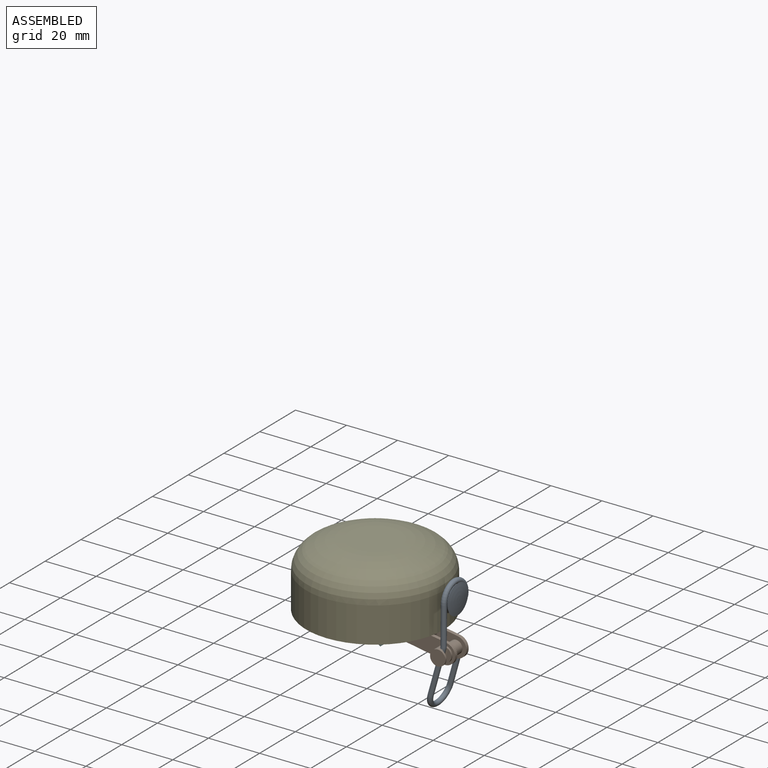
[diagram: assembled view]
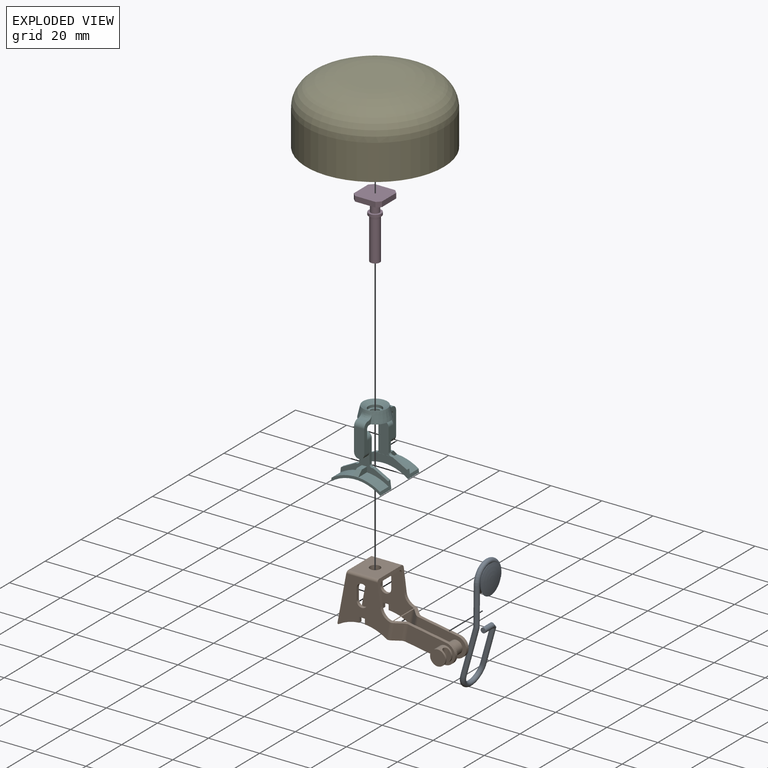
[diagram: exploded view]
GUIDED TOUR — MATED ASSEMBLY WITH SUBASSEMBLIES (Onshape document 56e26722e4b0724211d9a1d1, AutoMate assembly 56e26722e4b0724211d9a1d1_04165e789e1404fa7c723717_1f0495e86e8e58e358d8e318_default)

This assembly has 7 component occurrences arranged in 6 top-level units: 5 individual components plus 1 subassembly (S0). The tour has two levels: first the top level, where each subassembly is treated as one rigid unit; then each subassembly is toured internally in its own section (nesting deeper than one subassembly level is flattened into its subassembly's section).

Components are labeled P0..P6 across the whole record; subassembly units are labeled S0..S0. A mate is a constraint between two units; its type names the relative motion it leaves free:
  CYLINDRICAL — leaves both rotation about and translation along the listed axis free,
  FASTENED — locks the two components together rigidly (no relative motion).
Axis/direction vectors are unit vectors and 'through' points are millimeter coordinates, both in the assembly's world frame.

TOP-LEVEL MATES (between units; each subassembly's internal mates are listed in its own section)
  1. FASTENED "Fastened 2": P2 <-> P3, direction (0.000, 0.000, 1.000) through (3.23, 0.00, 3.32) mm
  2. CYLINDRICAL "Cylindrical 2": P3 <-> P1, axis (0.000, 0.000, -1.000) through (3.23, 0.00, -2.28) mm
  3. CYLINDRICAL "Cylindrical 3": P4 <-> P2, axis (0.000, 0.000, 1.000) through (3.23, 0.00, 3.04) mm
  4. CYLINDRICAL "Cylindrical 1": S0 <-> P1, axis (0.000, -1.000, 0.000) through (33.23, -0.80, -22.26) mm
  5. FASTENED "Fastened 1": P5 <-> P1, direction (0.000, 0.000, -1.000) through (3.23, 0.00, -1.26) mm

TOP-LEVEL ASSEMBLY ORDER
  1. P1 — the base component [order heuristic]
  2. S0 [order heuristic]
  3. P3 [order heuristic]
  4. P5 [order heuristic]
  5. P2 [order heuristic]
  6. P4 [order heuristic]
Order-tag legend:
  [order heuristic] — this assembly is geometrically interlocked (no collision-free removal order exists), so components are listed in mate-graph order; insertion feasibility is not verified.

Of the 7 component occurrences, 2 carry the full construction recipe — the FeatureScript program that regenerates the part's solid from scratch; the rest are supplied as boundary geometry only. Each toured unit is shown spotlighted twice — assembled, then exploded with a leader line back to its socket (green = recipe-attached component, orange = geometry-only, blue = subassembly unit; the rest desaturated gray).
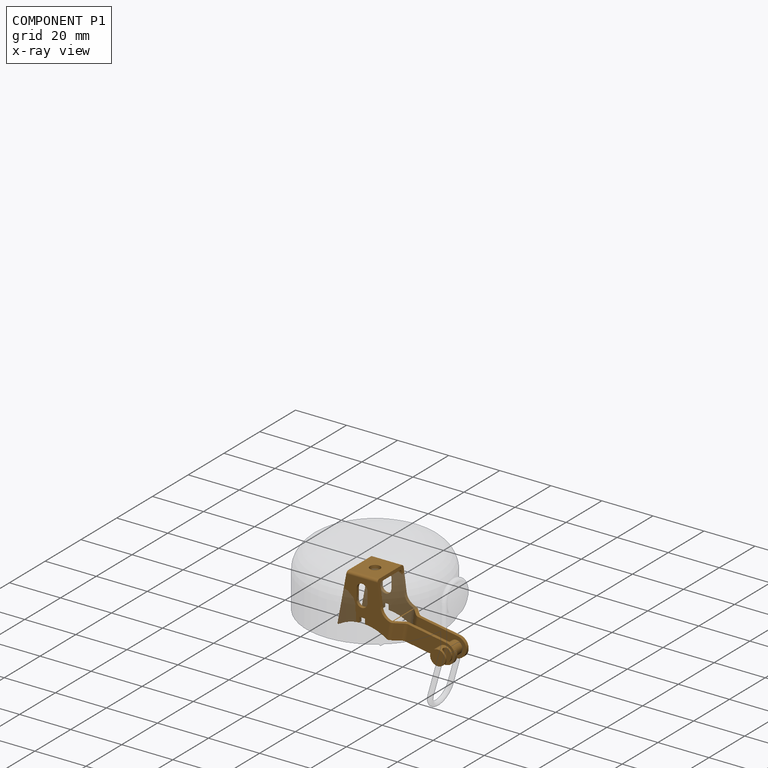
[diagram: component P1 — x-ray view]
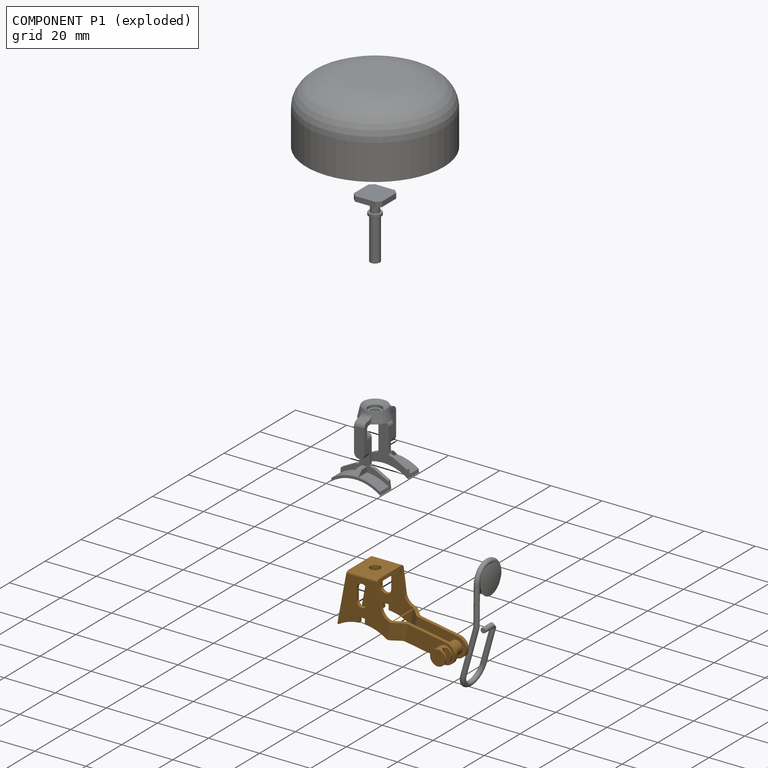
[diagram: component P1 — exploded]
COMPONENT P1 — geometry summary (no construction recipe available for this part):
  bounding box: 43.6 x 25.0 x 15.1 mm
  B-rep topology: 1 solid, 73 faces, 422 edges
  volume: 1398 mm^3 (8% of its bounding box)
Held by: CYLINDRICAL mate "Cylindrical 2" to P3; CYLINDRICAL mate "Cylindrical 1" to P0; FASTENED mate "Fastened 1" to P5.
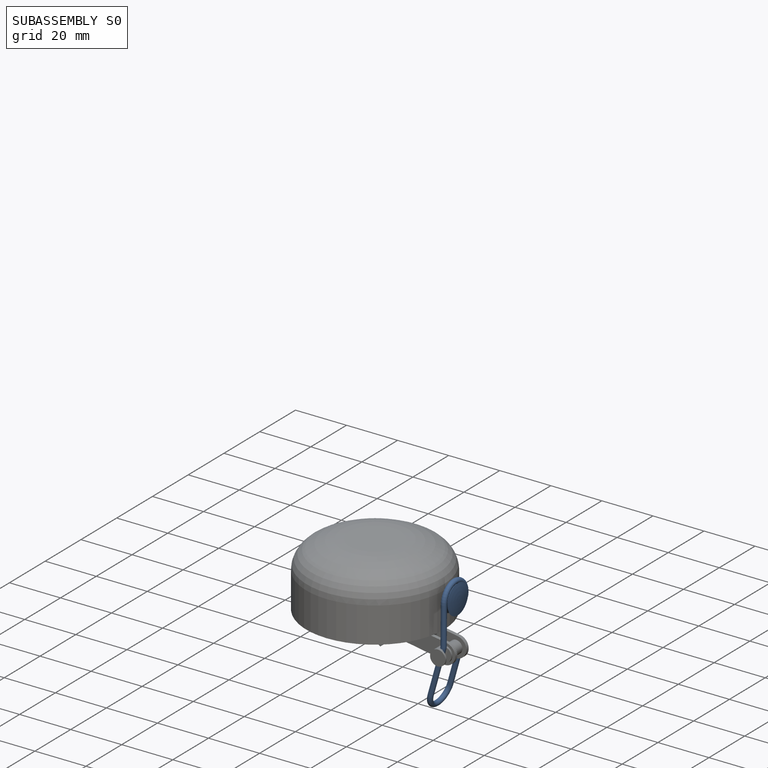
[diagram: subassembly S0 — assembled]
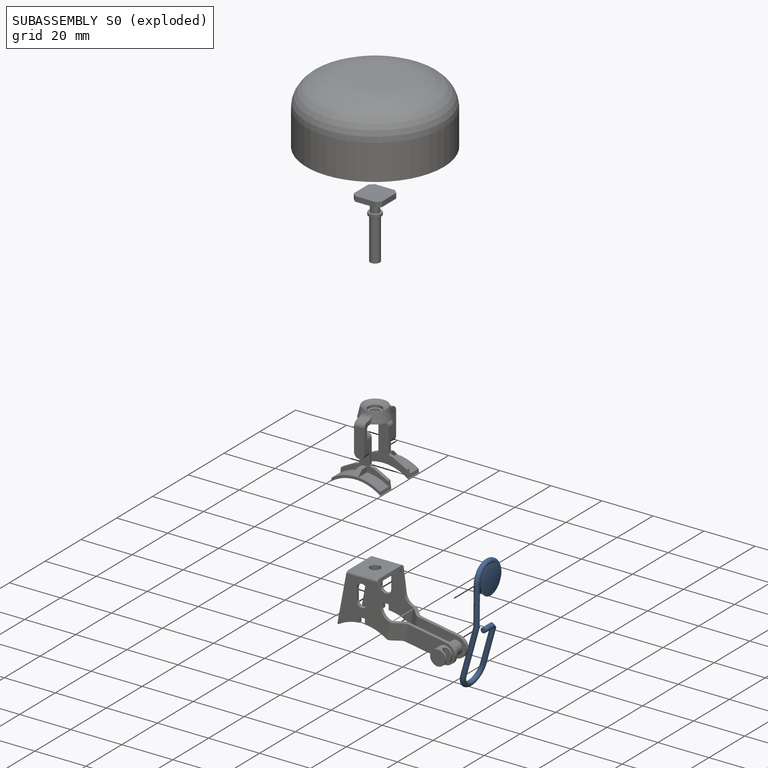
[diagram: subassembly S0 — exploded]
SUBASSEMBLY S0 — 2 components (P0, P6), of which 0 recipe-attached; toured below.
Held by: CYLINDRICAL mate "Cylindrical 1" to P1.
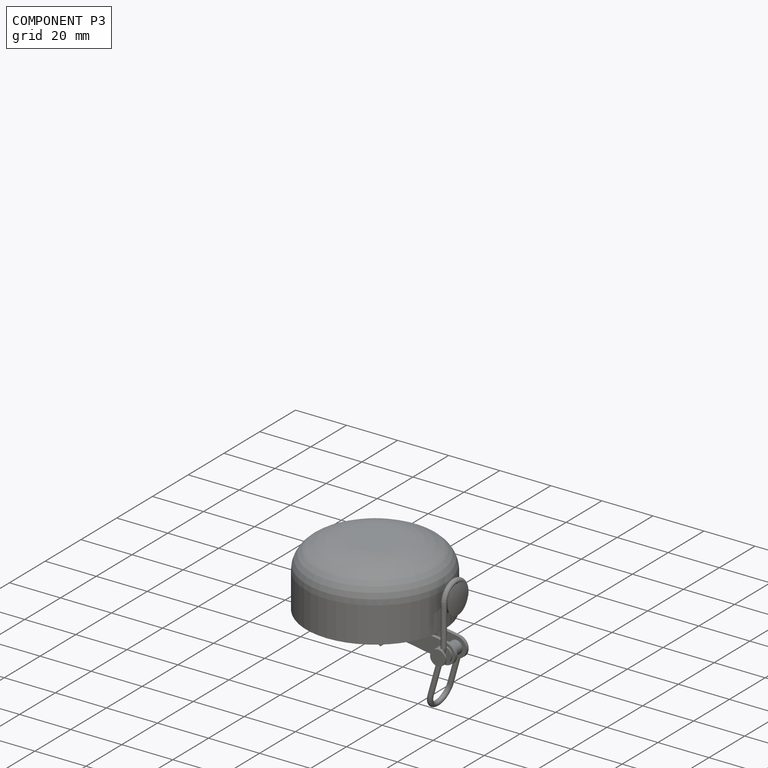
[diagram: component P3 — assembled]
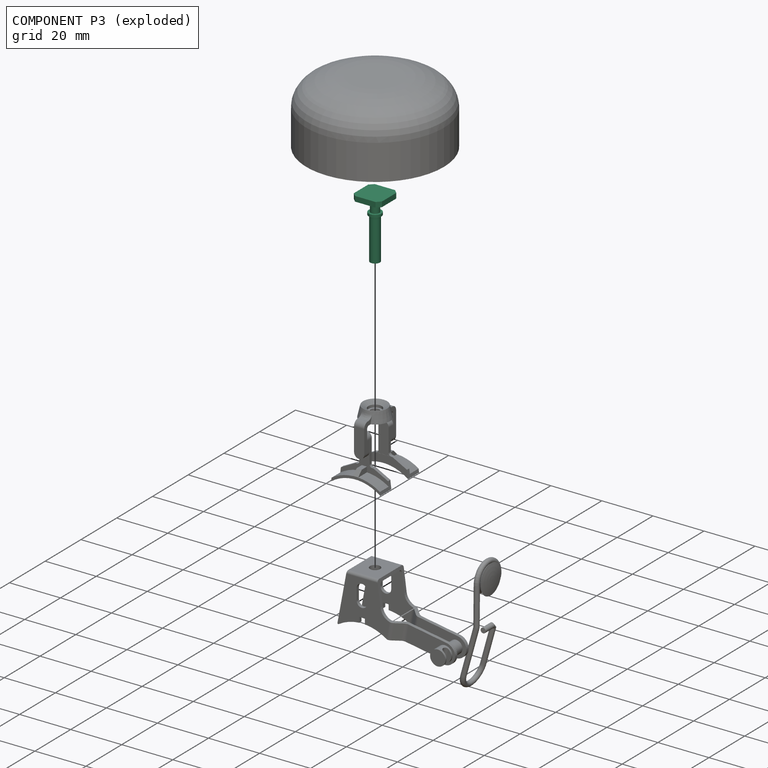
[diagram: component P3 — exploded]
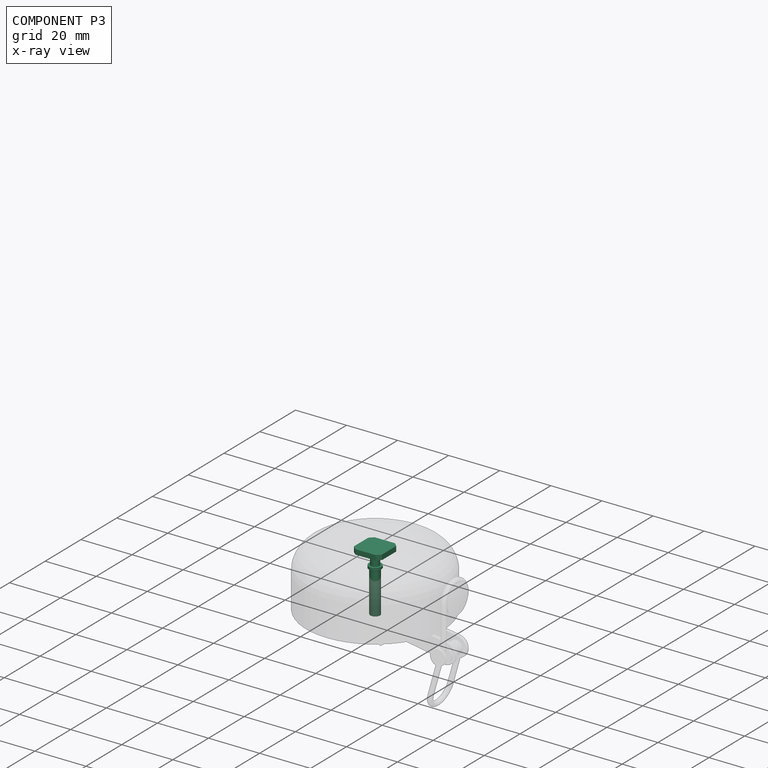
[diagram: component P3 — x-ray view]
COMPONENT P3 — recipe-attached (CADFS 00107358, mesh-verified: the recipe's output STEP matches this component's geometry to below the mesh-comparison resolution (tessellation chordal tolerance ~0.043 mm)).
Held by: FASTENED mate "Fastened 2" to P2; CYLINDRICAL mate "Cylindrical 2" to P1.
Construction recipe (FeatureScript — the CAD program that rebuilds this solid; sketch coordinates are in the units given by the * unit suffixes, e.g. mm):

FeatureScript 1511;
import(path : "onshape/std/geometry.fs", version : "1511.0");
import(path : "onshape/std/common.fs", version : "1511.0");
const mm = millimeter;
const VERTEX = EntityType.VERTEX;
const EDGE = EntityType.EDGE;
const FACE = EntityType.FACE;
const BODY = EntityType.BODY;
function v(x, y){return vector(x, y);}
function OD(order){return orderDisambiguation(order);}
function OSD(set){return originalSetDisambiguation(set);}
function TD(topology){return topologyDisambiguation(topology);}
function TDD(query){return trueDependencyDisambiguation(query);}
function sQuery(a, b, c) {return sketchEntityQuery(a, b, c);}

annotation { "Feature Type Name" : "Feature", "Feature Type Description" : "" }
export const myFeature = defineFeature(function(context is Context, id is Id, definition is map)
    precondition{}
    {
        {
            var Q0;
            Q0=qCreatedBy(makeId("Right.planeOp"),FACE);
            var sketch = newSketch(context, id + "F0", { "sketchPlane" : qUnion([Q0])});
            skLineSegment(sketch, "E0", {"start": v(-3.4, 0) * mm, "end": v(-1.68, 1) * mm});
            skLineSegment(sketch, "E1", {"start": v(-1.68, 1) * mm, "end": v(-1.68, 4.6) * mm});
            skLineSegment(sketch, "E2", {"start": v(-1.68, 4.6) * mm, "end": v(-2.5, 4.6) * mm});
            skLineSegment(sketch, "E3", {"start": v(-2.5, 4.6) * mm, "end": v(-2.5, 5.6) * mm});
            skLineSegment(sketch, "E4", {"start": v(-2.5, 5.6) * mm, "end": v(-2, 5.6) * mm});
            skLineSegment(sketch, "E5", {"start": v(-2, 5.6) * mm, "end": v(-1.9, 6.6) * mm});
            skLineSegment(sketch, "E6", {"start": v(-1.9, 6.6) * mm, "end": v(-1.9, 22.1) * mm});
            skLineSegment(sketch, "E7", {"start": v(-1.9, 22.1) * mm, "end": v(0, 22.1) * mm});
            skLineSegment(sketch, "E8", {"start": v(0, 22.1) * mm, "end": v(0, 0) * mm});
            skLineSegment(sketch, "E9", {"start": v(-3.4, 0) * mm, "end": v(0, 0) * mm});
            skSolve(sketch);
        }
        {
            var Q0;
            Q0=makeQuery(id+"F0.imprint","IMPRINT",FACE,{"disambiguationData":[TD([[makeQuery(id+"F0.imprint","IMPRINT",EDGE,{"derivedFrom":sQuery(id+"F0.wireOp",EDGE,"E0")}),-1.0]])]});
            var Q1;
            Q1=sQuery(id+"F0.wireOp",EDGE,"E8");
            revolve(context, id + "F1", {"entities" : qUnion([Q0]), "axis" : qUnion([Q1]), "revolveType" : RevolveType.FULL});
        }
        {
            var Q0;
            Q0=qCreatedBy(makeId("Top.planeOp"),FACE);
            var sketch = newSketch(context, id + "F2", { "sketchPlane" : qUnion([Q0])});
            skLineSegment(sketch, "E10", {"start": v(-5.5, -5.5) * mm, "end": v(5.5, -5.5) * mm});
            skLineSegment(sketch, "E11", {"start": v(5.5, -5.5) * mm, "end": v(5.5, 5.5) * mm});
            skLineSegment(sketch, "E12", {"start": v(5.5, 5.5) * mm, "end": v(-5.5, 5.5) * mm});
            skLineSegment(sketch, "E13", {"start": v(-5.5, 5.5) * mm, "end": v(-5.5, -5.5) * mm});
            skLineSegment(sketch, "E14", {"start": v(0, -5.5) * mm, "end": v(0, 5.5) * mm, "construction": true});
            skLineSegment(sketch, "E15", {"start": v(-5.5, 0) * mm, "end": v(5.5, 0) * mm, "construction": true});
            skSolve(sketch);
        }
        {
            var Q0;
            Q0=makeQuery(id+"F2.imprint","IMPRINT",FACE,{"disambiguationData":[TD([[makeQuery(id+"F2.imprint","IMPRINT",EDGE,{"derivedFrom":sQuery(id+"F2.wireOp",EDGE,"E10")}),1.0]])]});
            extrude(context, id + "F3", {"entities" : qUnion([Q0]), "operationType" : NewBodyOperationType.ADD, "oppositeDirection" : true, "depth" : 2 * mm});
        }
        {
            var Q0;
            Q0=makeQuery(id+"F3.opExtrude","SWEPT_EDGE",EDGE,{"disambiguationData":[OSD([sQuery(id+"F2.wireOp",EDGE,"E12"),sQuery(id+"F2.wireOp",EDGE,"E13")])]});
            var Q1;
            Q1=makeQuery(id+"F3.opExtrude","SWEPT_EDGE",EDGE,{"disambiguationData":[OSD([sQuery(id+"F2.wireOp",EDGE,"E11"),sQuery(id+"F2.wireOp",EDGE,"E12")])]});
            var Q2;
            Q2=makeQuery(id+"F3.opExtrude","SWEPT_EDGE",EDGE,{"disambiguationData":[OSD([sQuery(id+"F2.wireOp",EDGE,"E10"),sQuery(id+"F2.wireOp",EDGE,"E11")])]});
            var Q3;
            Q3=makeQuery(id+"F3.opExtrude","SWEPT_EDGE",EDGE,{"disambiguationData":[OSD([sQuery(id+"F2.wireOp",EDGE,"E10"),sQuery(id+"F2.wireOp",EDGE,"E13")])]});
            chamfer(context, id + "F4", {"entities" : qUnion([Q0, Q1, Q2, Q3]), "width" : 1.5 * mm, "tangentPropagation" : true});
        }
    });
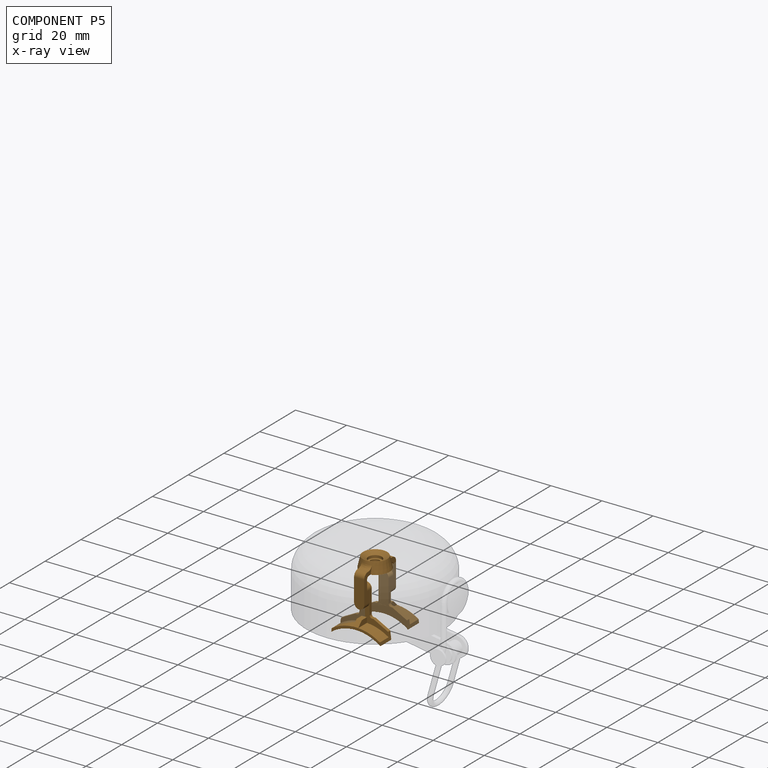
[diagram: component P5 — x-ray view]
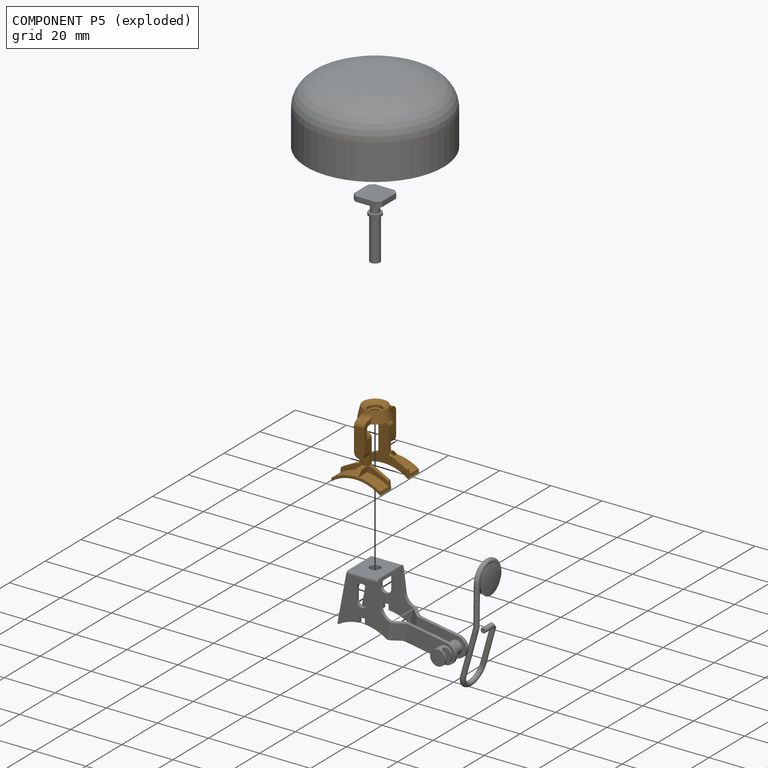
[diagram: component P5 — exploded]
COMPONENT P5 — geometry summary (no construction recipe available for this part):
  bounding box: 25.6 x 21.7 x 19.3 mm
  B-rep topology: 1 solid, 79 faces, 434 edges
  volume: 1046 mm^3 (10% of its bounding box)
  symmetry: 2-fold rotationally symmetric about the z axis; mirror-symmetric across its x mid-plane, y mid-plane
Held by: FASTENED mate "Fastened 1" to P1.
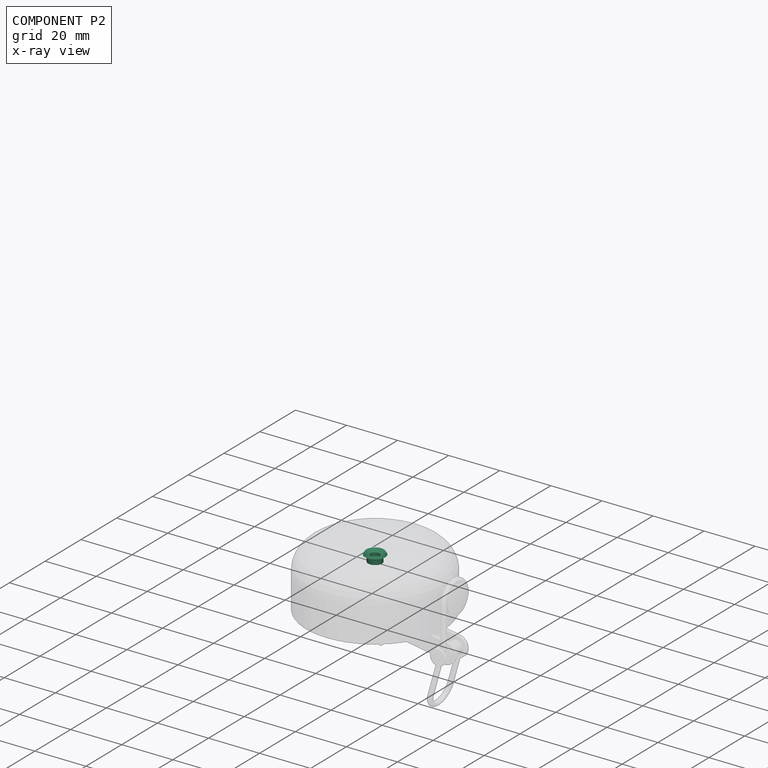
[diagram: component P2 — x-ray view]
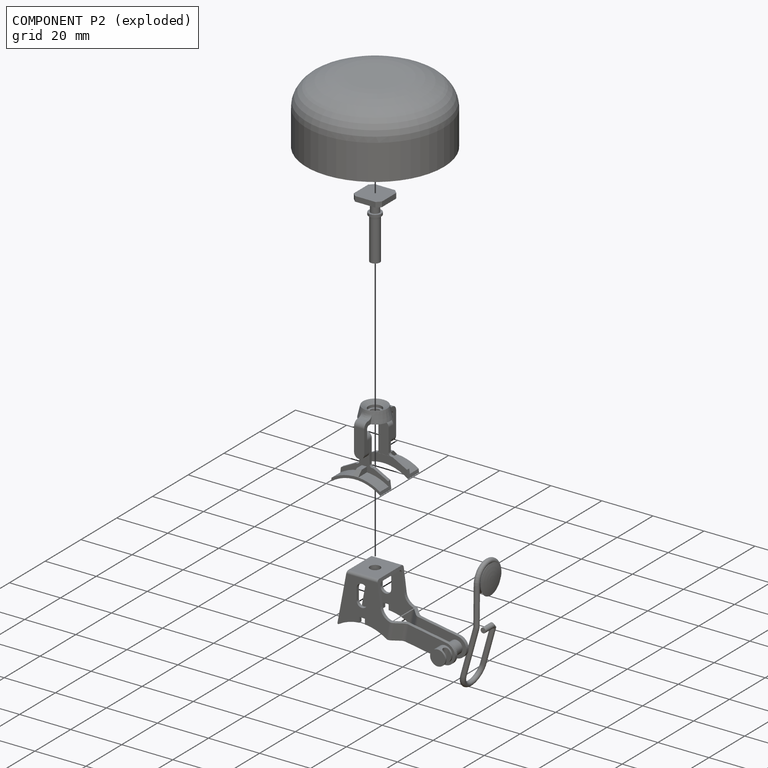
[diagram: component P2 — exploded]
COMPONENT P2 — recipe-attached (CADFS 00107359, mesh-verified: the recipe's output STEP matches this component's geometry to below the mesh-comparison resolution (tessellation chordal tolerance ~0.0178 mm)).
Held by: FASTENED mate "Fastened 2" to P3; CYLINDRICAL mate "Cylindrical 3" to P4.
Construction recipe (FeatureScript — the CAD program that rebuilds this solid; sketch coordinates are in the units given by the * unit suffixes, e.g. mm):

FeatureScript 1511;
import(path : "onshape/std/geometry.fs", version : "1511.0");
import(path : "onshape/std/common.fs", version : "1511.0");
const mm = millimeter;
const VERTEX = EntityType.VERTEX;
const EDGE = EntityType.EDGE;
const FACE = EntityType.FACE;
const BODY = EntityType.BODY;
function v(x, y){return vector(x, y);}
function OD(order){return orderDisambiguation(order);}
function OSD(set){return originalSetDisambiguation(set);}
function TD(topology){return topologyDisambiguation(topology);}
function TDD(query){return trueDependencyDisambiguation(query);}
function sQuery(a, b, c) {return sketchEntityQuery(a, b, c);}

annotation { "Feature Type Name" : "Feature", "Feature Type Description" : "" }
export const myFeature = defineFeature(function(context is Context, id is Id, definition is map)
    precondition{}
    {
        {
            var Q0;
            Q0=qCreatedBy(makeId("Right.planeOp"),FACE);
            var sketch = newSketch(context, id + "F0", { "sketchPlane" : qUnion([Q0])});
            skLineSegment(sketch, "E0", {"start": v(-1.7, 0) * mm, "end": v(-1.7, 2.5) * mm});
            skLineSegment(sketch, "E1", {"start": v(-1.7, 2.5) * mm, "end": v(-3.43, 3.5) * mm});
            skLineSegment(sketch, "E2", {"start": v(-3.43, 3.5) * mm, "end": v(-4, 2.56) * mm});
            skLineSegment(sketch, "E3", {"start": v(-4, 2.56) * mm, "end": v(-2.75, 1.84) * mm});
            skLineSegment(sketch, "E4", {"start": v(-2.75, 1.84) * mm, "end": v(-2.75, 0) * mm});
            skLineSegment(sketch, "E5", {"start": v(-2.75, 0) * mm, "end": v(-1.7, 0) * mm});
            skLineSegment(sketch, "E6", {"start": v(0, 3.37) * mm, "end": v(0, 0) * mm});
            skSolve(sketch);
        }
        {
            var Q0;
            Q0=qSketchRegion(id+"F0",true);
            var Q1;
            Q1=sQuery(id+"F0.wireOp",EDGE,"E6");
            revolve(context, id + "F1", {"entities" : qUnion([Q0]), "axis" : qUnion([Q1]), "revolveType" : RevolveType.FULL});
        }
    });
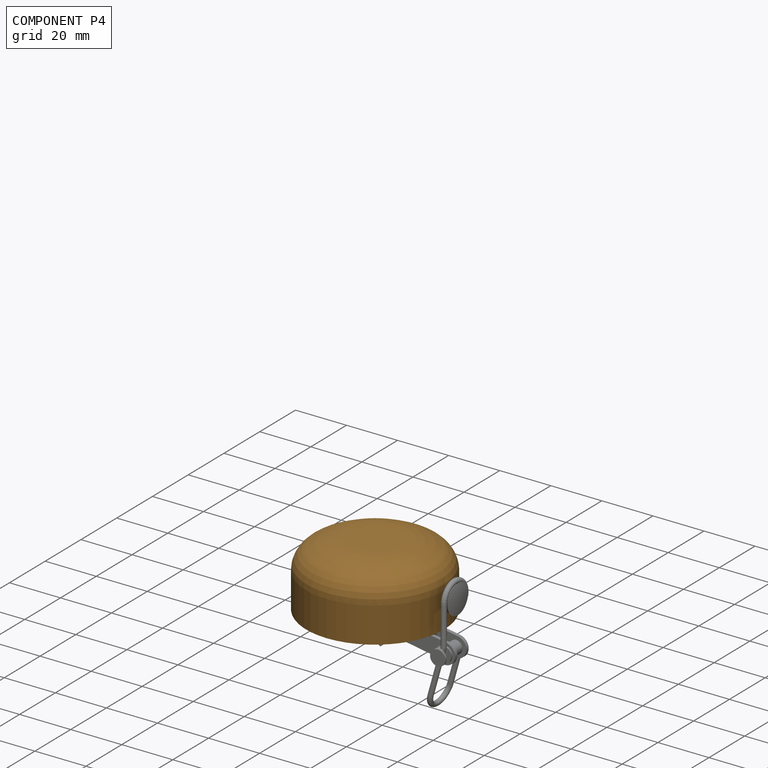
[diagram: component P4 — assembled]
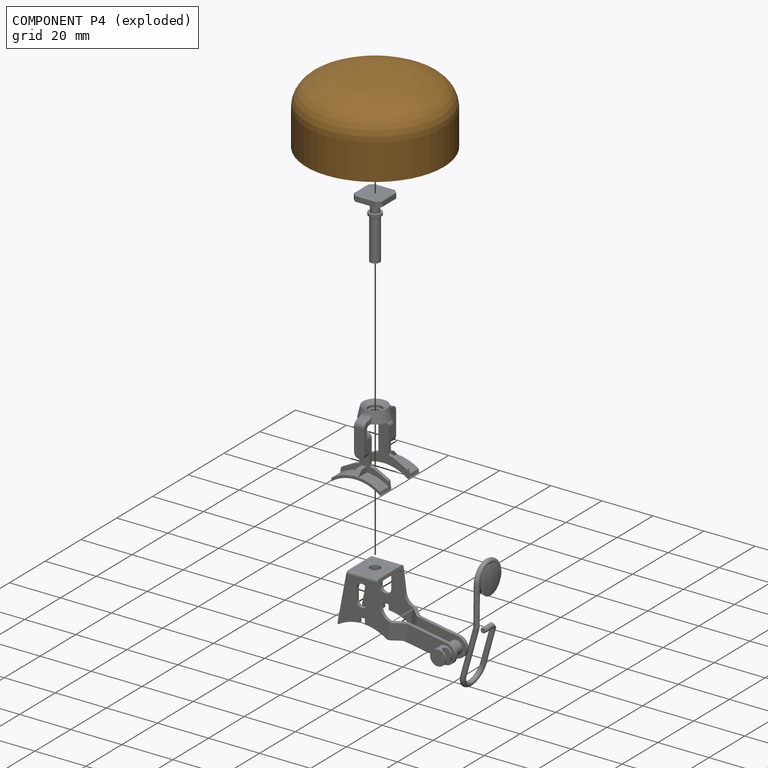
[diagram: component P4 — exploded]
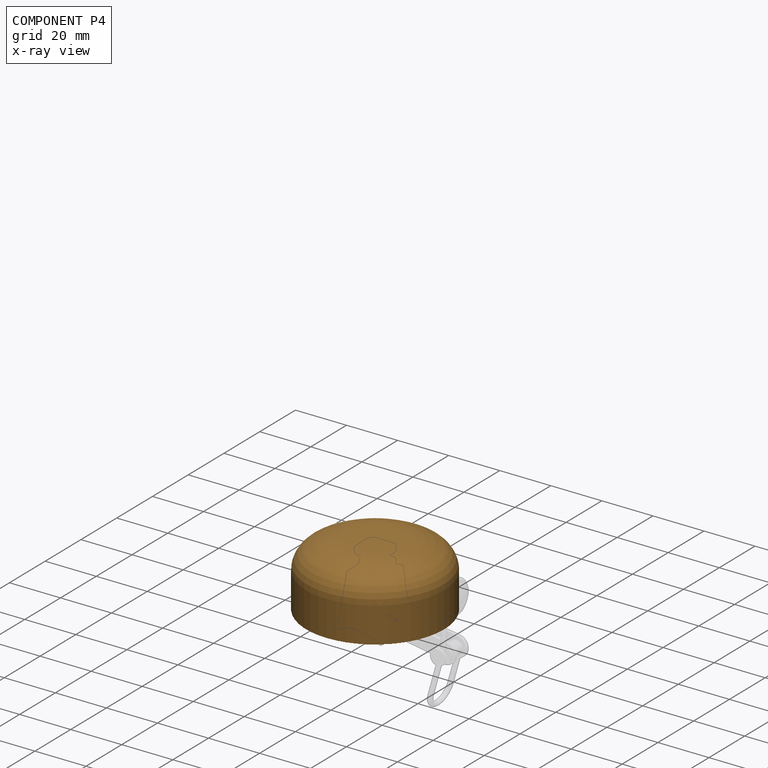
[diagram: component P4 — x-ray view]
COMPONENT P4 — geometry summary (no construction recipe available for this part):
  bounding box: 58.6 x 58.6 x 25.2 mm
  B-rep topology: 1 solid, 49 faces, 233 edges
  volume: 7137 mm^3 (8% of its bounding box)
  symmetry: mirror-symmetric across its y mid-plane
Held by: CYLINDRICAL mate "Cylindrical 3" to P2.
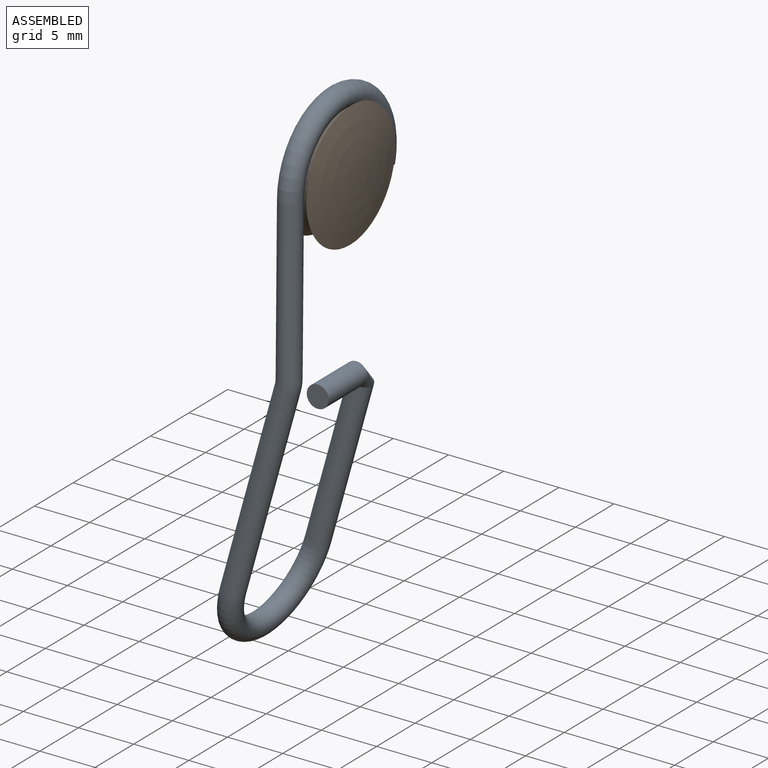
[diagram: subassembly S0 — assembled view]
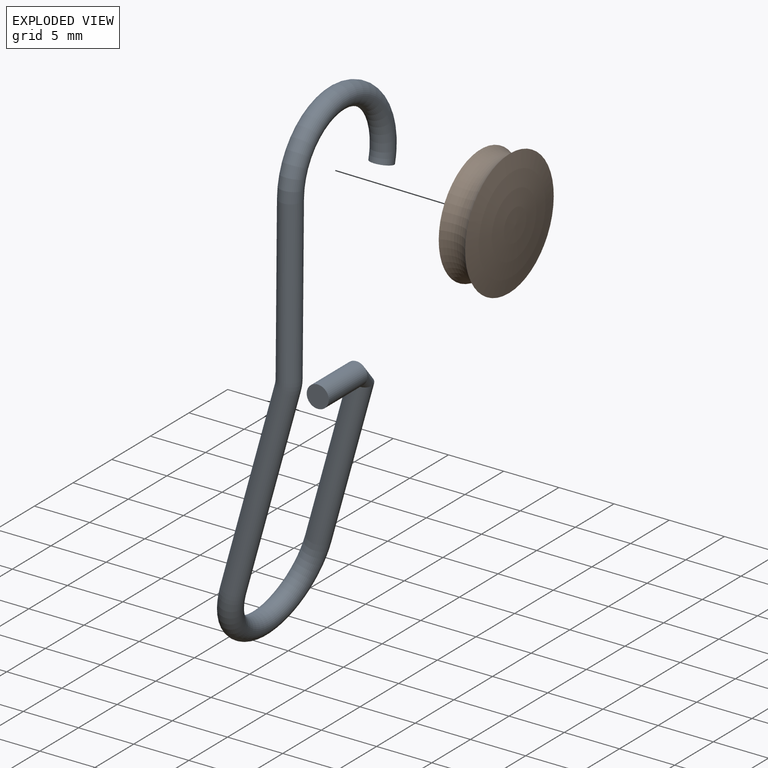
[diagram: subassembly S0 — exploded view]
SUBASSEMBLY S0 TOUR — 2 components, shown here in isolation at its own camera.

INTERNAL MATES
  1. FASTENED "Fastened 1": P6 <-> P0, direction (1.000, 0.000, -0.008) through (34.26, 0.20, -3.87) mm
  2. FASTENED "Fastened 1": P6 <-> P0, direction (1.000, 0.000, -0.008) through (34.26, 0.20, -3.87) mm

ASSEMBLY ORDER (within the subassembly)
  1. P0 — the base component [order heuristic]
  2. P6 [order heuristic]
Order-tag legend:
  [order heuristic] — this assembly is geometrically interlocked (no collision-free removal order exists), so components are listed in mate-graph order; insertion feasibility is not verified.
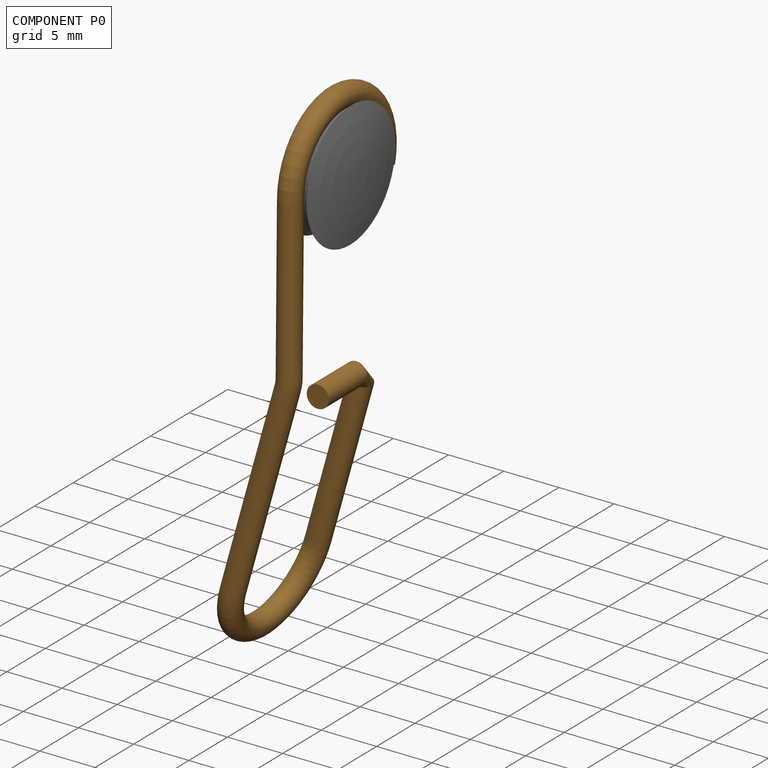
[diagram: component P0 — assembled]
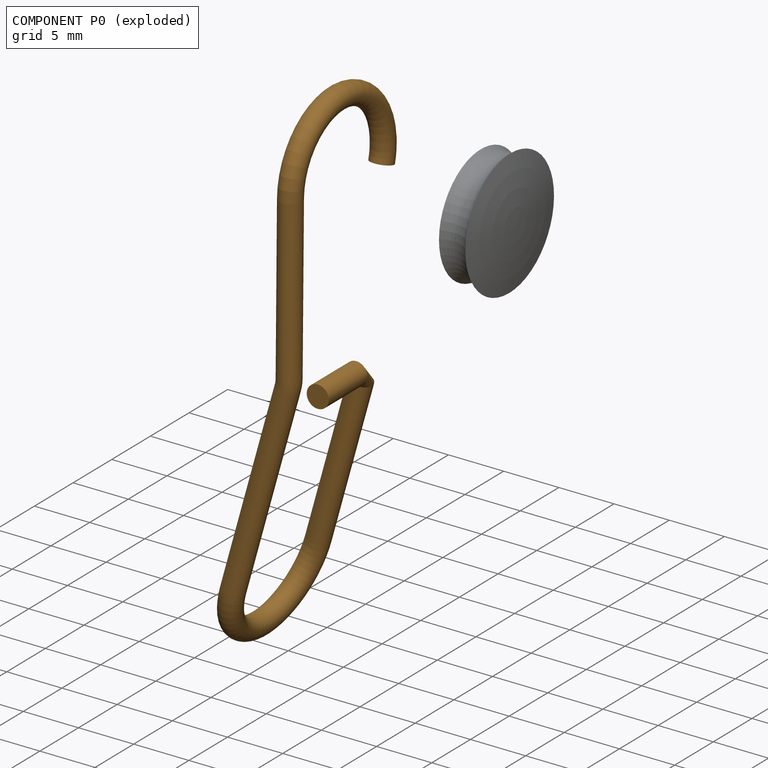
[diagram: component P0 — exploded]
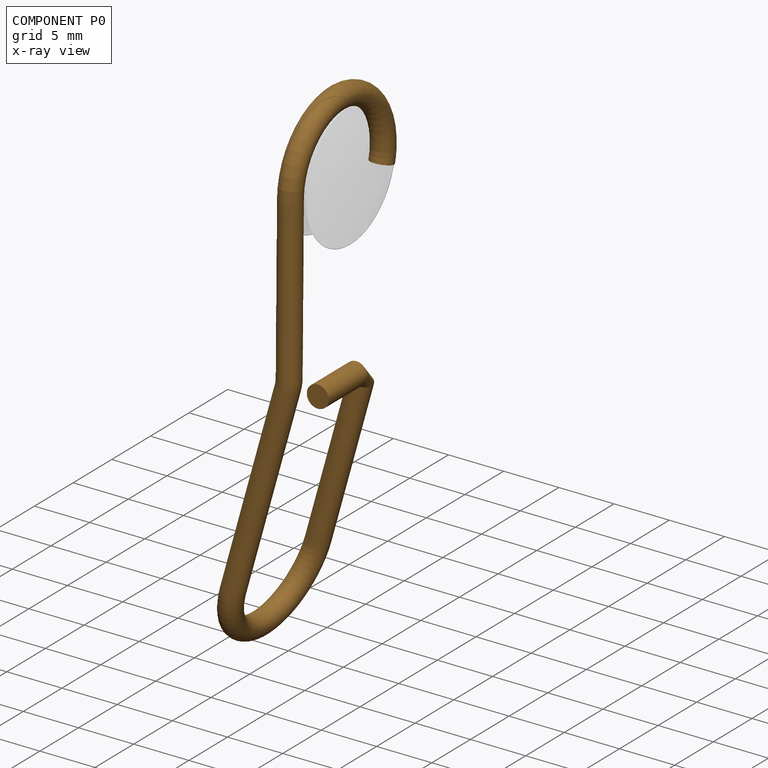
[diagram: component P0 — x-ray view]
COMPONENT P0 — geometry summary (no construction recipe available for this part):
  bounding box: 47.9 x 15.2 x 6.9 mm
  B-rep topology: 1 solid, 10 faces, 38 edges
  volume: 291 mm^3 (6% of its bounding box)
Held by: FASTENED mate "Fastened 1" to P6; FASTENED mate "Fastened 1" to P6.
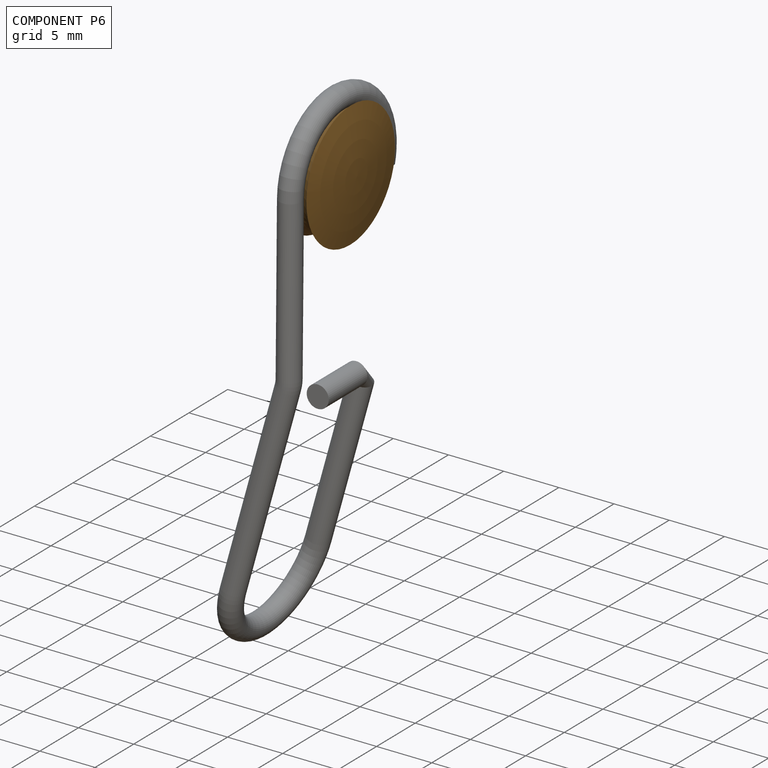
[diagram: component P6 — assembled]
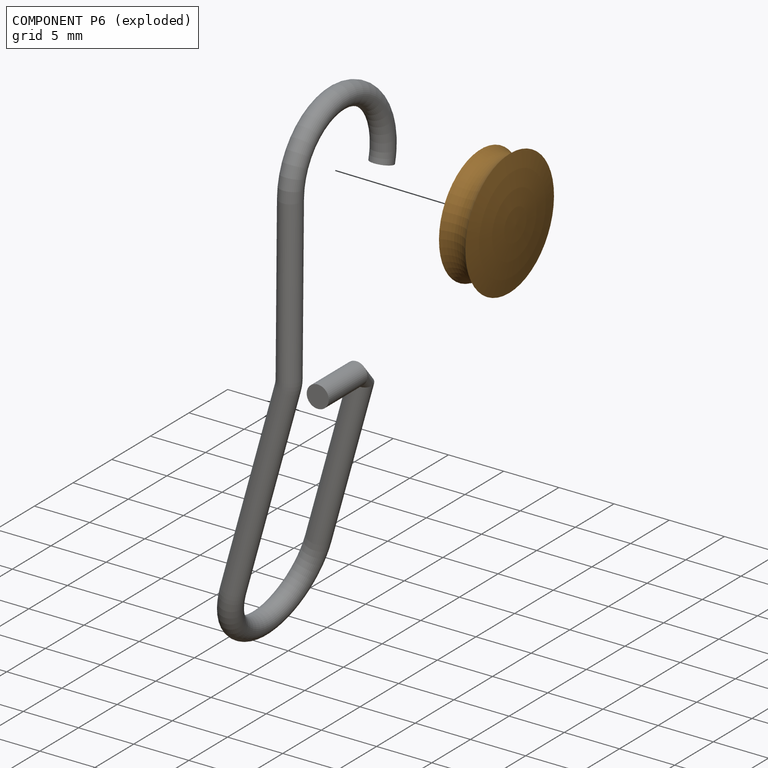
[diagram: component P6 — exploded]
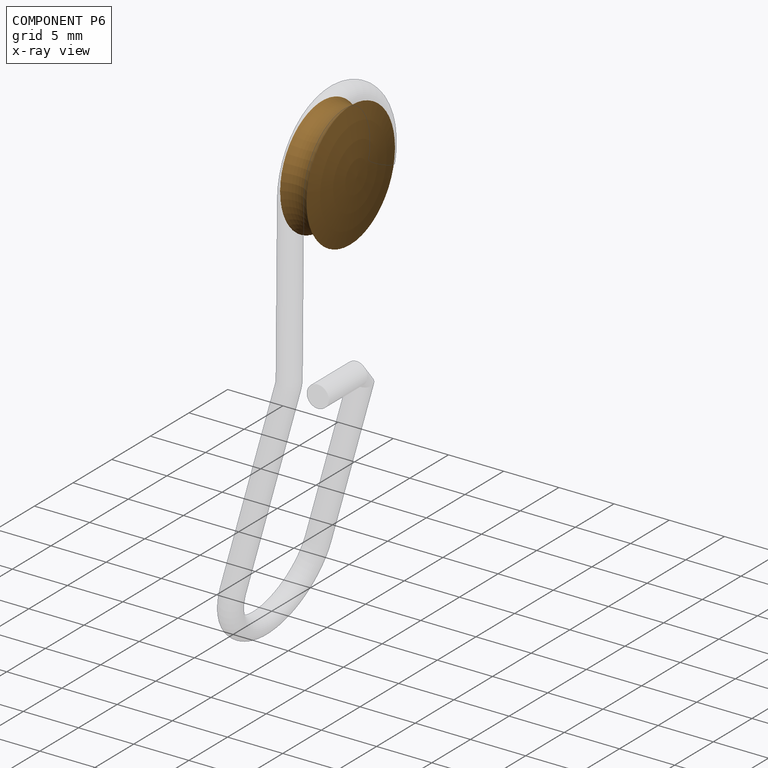
[diagram: component P6 — x-ray view]
COMPONENT P6 — geometry summary (no construction recipe available for this part):
  bounding box: 15.2 x 15.2 x 4.2 mm
  B-rep topology: 1 solid, 3 faces, 12 edges
  volume: 298 mm^3 (31% of its bounding box)
  symmetry: revolution-symmetric about the z axis through its bounding-box center; mirror-symmetric across its x mid-plane, y mid-plane
Held by: FASTENED mate "Fastened 1" to P0; FASTENED mate "Fastened 1" to P0.
PROVENANCE & LICENSES
Assembly (occurrences, transforms, mates, per-part STEP geometry): AutoMate dataset, Zenodo record 7776208, CC0.
Construction recipes: CADFS (HuggingFace VladPyatov/CADFS, CC-BY-4.0, layered over the ABC dataset), FeatureScript reconstruction programs keyed by ABC model id.
Join: ABC meta listings map ABC model id -> Onshape documentId; within a shared document, parts are matched by geometric signature (bounding-box dims + volume at 0.1% relative tolerance, exact B-rep face/solid counts).
Verification: 2 of this assembly's 7 components carry a recipe attachment, and every attachment is mesh-verified: the CADFS STEP and the AutoMate member STEP were compared as meshes in their shared local frame (symmetric sampled-point-to-mesh distance); worst across the 2 attachments: below the mesh-comparison resolution (tessellation chordal tolerance ~0.043 mm) on a 29 mm part.
Renders: orthographic iso camera (az 35 / el 25); the floor grid conveys scale (grid pitch printed in each image; no ruler). In the exploded view each component is displaced by its stored offset vector: the offsets alone carry the explosion direction (mate normal/axis signs are not orientation cues and do not encode it), and separation distances are assigned per mate-chain, not proportionally to assembly-order depth.
